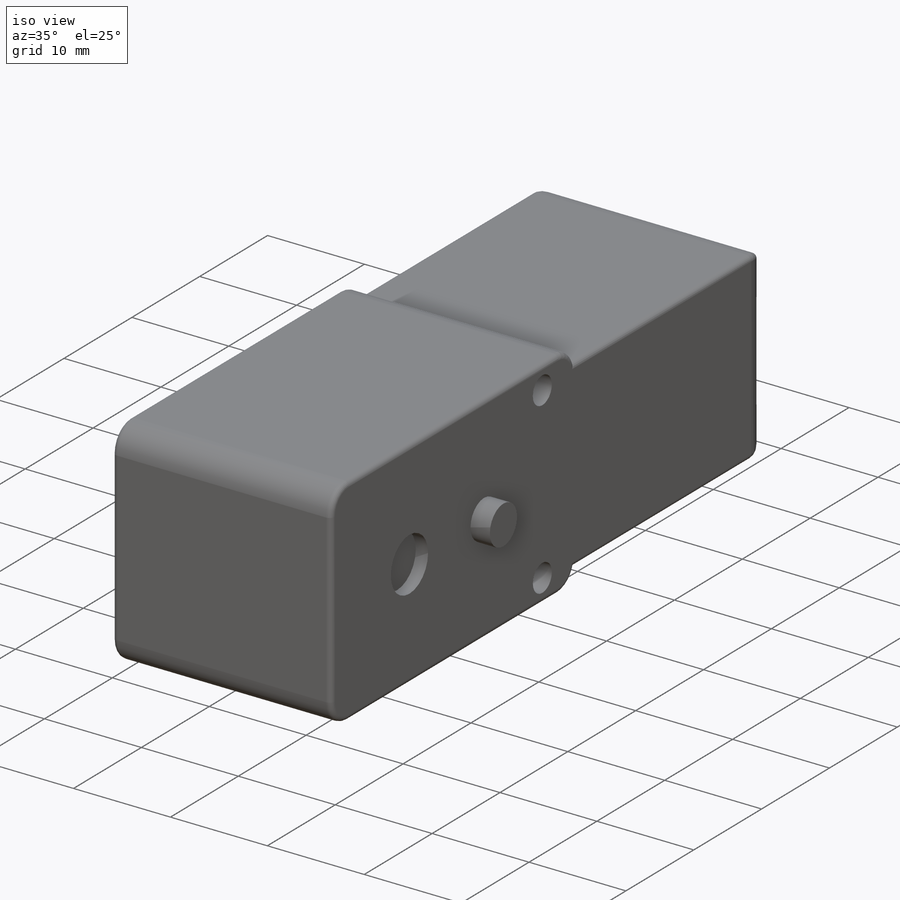
[diagram: iso view]
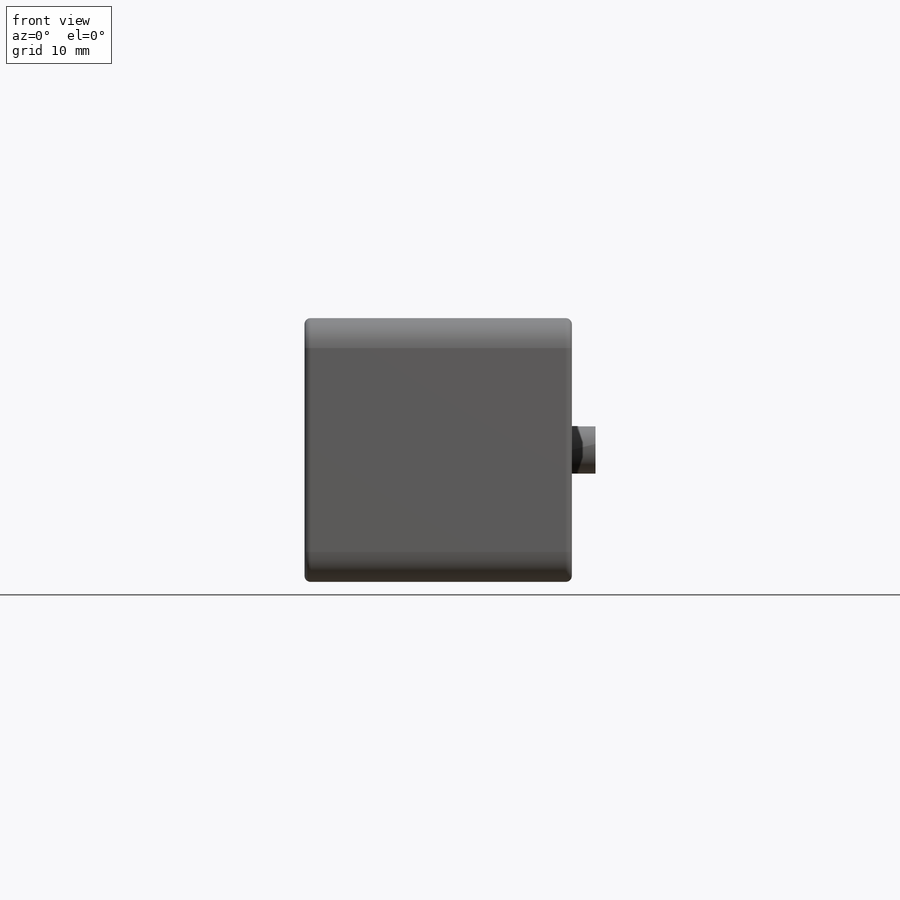
[diagram: front view]
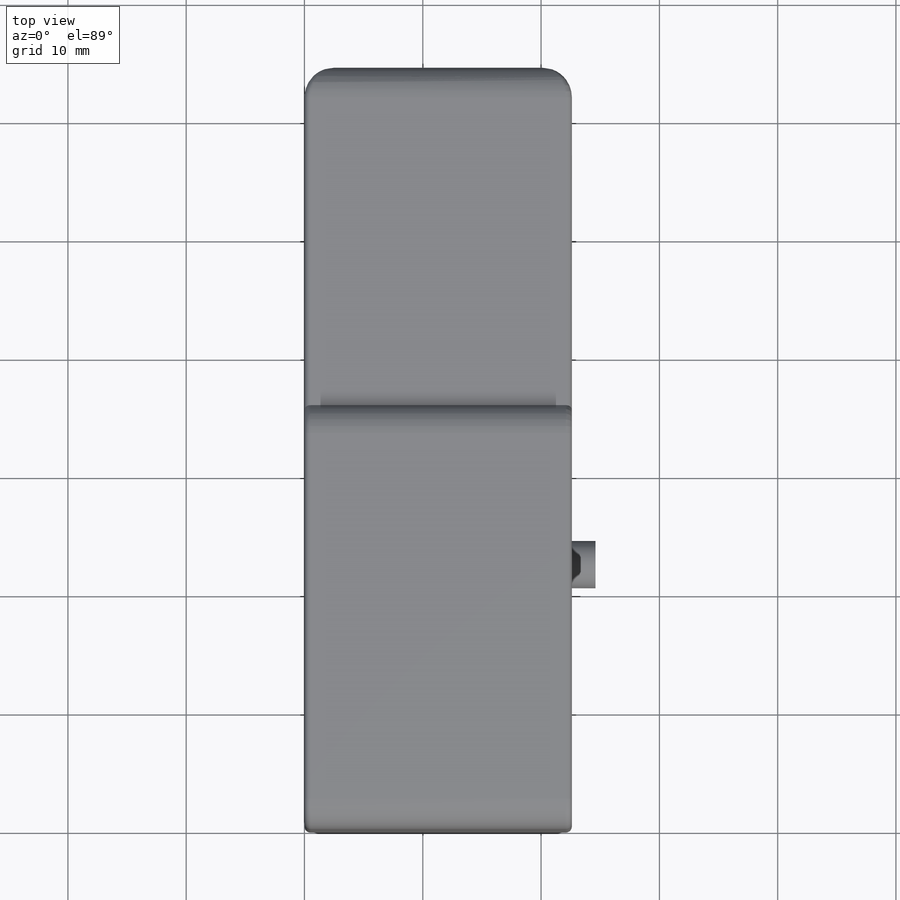
[diagram: top view]
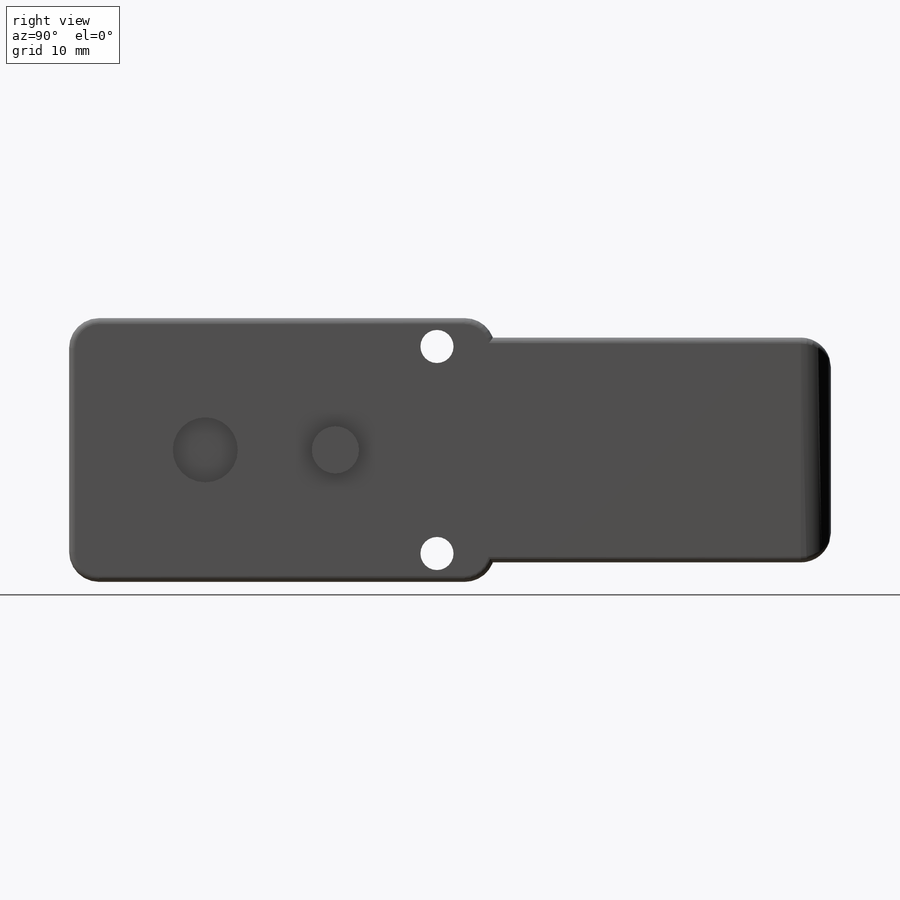
[diagram: right view]
SOLIDWORKS PART (.sldprt)
format: sldprt  version: not decoded by parser v0  size: 272,896 bytes
history: native  units: mm
features: sketch x3, extrude x2, fillet x2, material x1, cut_extrude x1 (+11 scaffold rows collapsed)
feature tree (20):
  scaffold x11  (default folders/planes/origin — collapsed)
  material  "Material <not specified>"
  sketch  "Sketch1"  dims[D6=2.8mm D1=19.0mm D2=22.3mm D3=1.65mm D4=28.575mm D5=64.4mm D7=17.5mm D8=2.4mm D9=31.1mm]
  extrude  "Boss-Extrude1"  Depth=22.6mm
  fillet  "Fillet1"  Radius=2.54mm
  fillet  "Fillet2"  Radius=0.508mm
  sketch  "Sketch2"  dims[D2=4.0mm D1=22.0mm]
  extrude  "Boss-Extrude2"  Depth=2mm
  sketch  "Sketch3"  dims[D1=5.5mm]
  cut_extrude  "Cut-Extrude1"  Depth=1.27mm
decode coverage: 8 of 8 modeling features carry decoded parameters
note: suppression state not decoded; provenance and decode notes live in map.json
